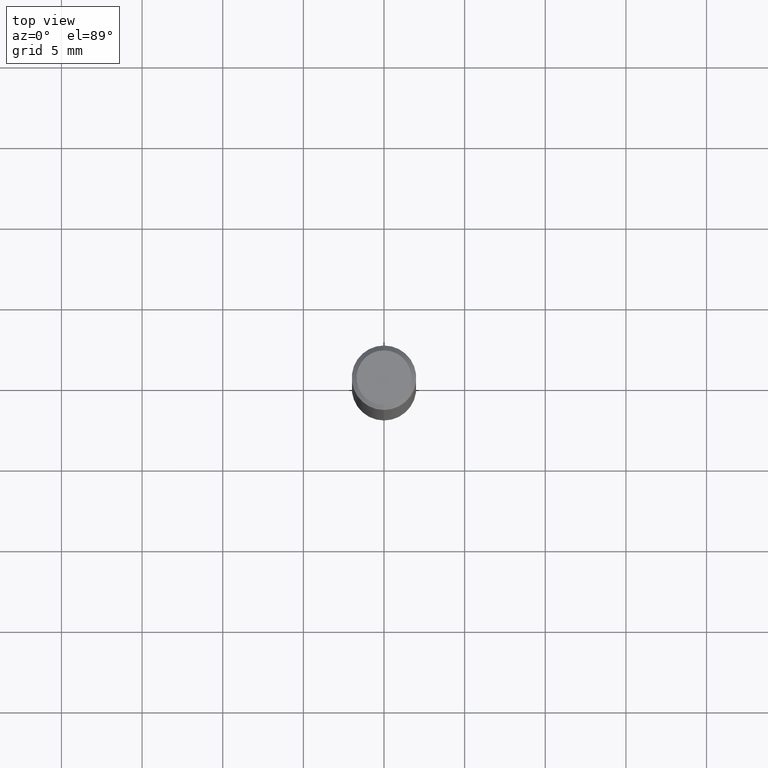
[diagram: clean part render]
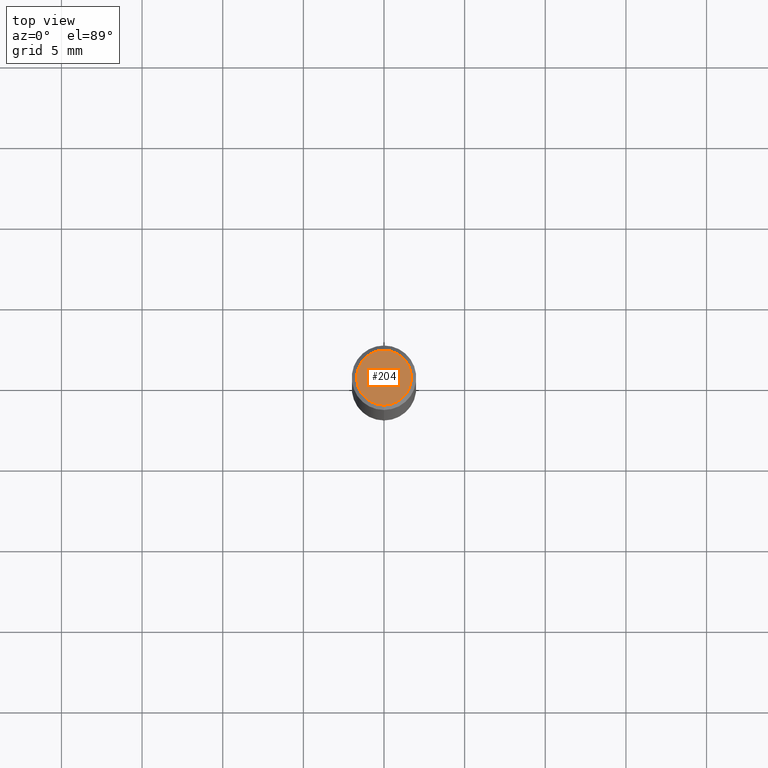
[diagram: same view with one face highlighted and labeled with its STEP entity id]
A machine part, top view. The second image highlights one B-rep face of the part: STEP entity #204.
In plain terms, the highlighted planar face has unit normal (-0, 0, 1).
Its self-contained STEP definition (entity closure, byte-faithful):
#114=EDGE_CURVE('',#170,#136,#252,.T.);
#116=EDGE_CURVE('',#136,#170,#254,.T.);
#136=VERTEX_POINT('',#276);
#170=VERTEX_POINT('',#315);
#204=ADVANCED_FACE('',(#356),#357,.T.);
#252=CIRCLE('',#407,1.7);
#254=CIRCLE('',#410,1.7);
#276=CARTESIAN_POINT('',(2.08183080149804E-016,-1.7,0.0));
#315=CARTESIAN_POINT('',(0.0,1.7,0.0));
#356=FACE_OUTER_BOUND('',#533,.T.);
#357=PLANE('',#534);
#407=AXIS2_PLACEMENT_3D('',#566,#567,#568);
#410=AXIS2_PLACEMENT_3D('',#569,#570,#571);
#533=EDGE_LOOP('',(#703,#704));
#534=AXIS2_PLACEMENT_3D('',#705,#706,#707);
#566=CARTESIAN_POINT('',(0.0,0.0,0.0));
#567=DIRECTION('',(0.0,0.0,-1.0));
#568=DIRECTION('',(0.0,1.0,0.0));
#569=CARTESIAN_POINT('',(0.0,0.0,0.0));
#570=DIRECTION('',(0.0,0.0,-1.0));
#571=DIRECTION('',(0.0,1.0,0.0));
#703=ORIENTED_EDGE('',*,*,#114,.F.);
#704=ORIENTED_EDGE('',*,*,#116,.F.);
#705=CARTESIAN_POINT('',(0.0,0.85,0.0));
#706=DIRECTION('',(-0.0,0.0,1.0));
#707=DIRECTION('',(0.0,-1.0,0.0));